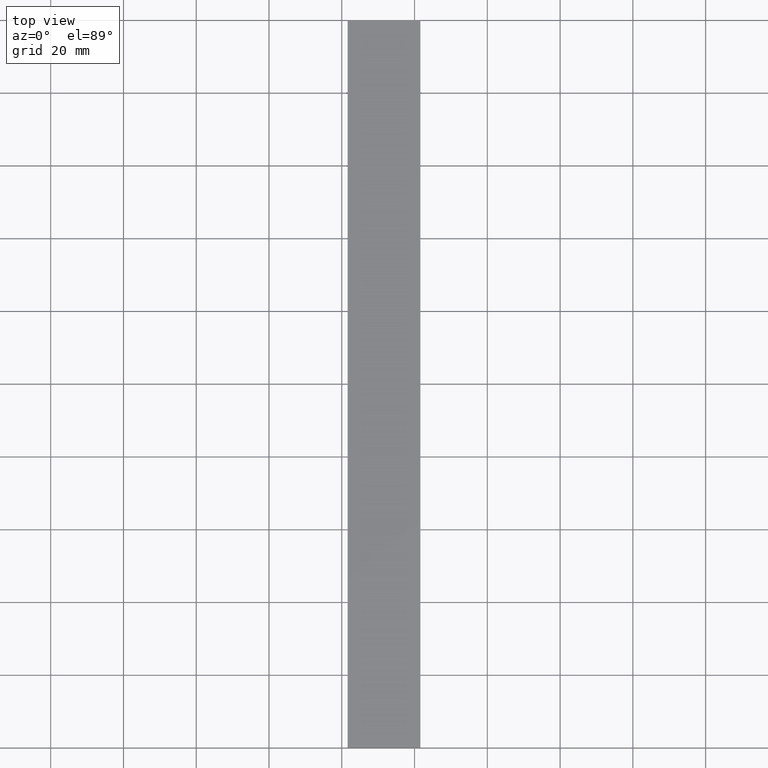
[diagram: clean part render]
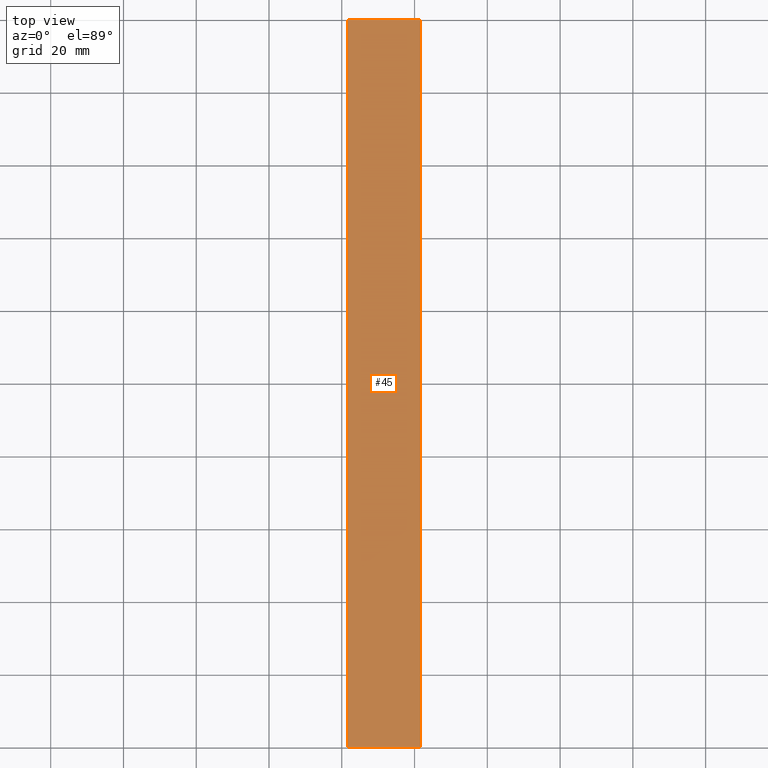
[diagram: same view with one face highlighted and labeled with its STEP entity id]
A machine part, top view. The second image highlights one B-rep face of the part: STEP entity #45.
In plain terms, the highlighted planar face has unit normal (0, -0, 1).
Its self-contained STEP definition (entity closure, byte-faithful):
#45=ADVANCED_FACE('',(#97),#96,.T.);
#96=PLANE('',#134);
#97=FACE_OUTER_BOUND('',#135,.T.);
#131=CARTESIAN_POINT('',(-6.03984348923E+01,-1.00000000000E+01,-1.55317700058E+01));
#132=DIRECTION('',(0.00000000000E+00,-0.00000000000E+00,1.00000000000E+00));
#133=DIRECTION('',(1.00000000000E+00,0.00000000000E+00,-0.00000000000E+00));
#134=AXIS2_PLACEMENT_3D('',#131,#132,#133);
#135=EDGE_LOOP('',(#156,#157,#158,#159));
#156=ORIENTED_EDGE('',*,*,#166,.F.);
#157=ORIENTED_EDGE('',*,*,#171,.F.);
#158=ORIENTED_EDGE('',*,*,#162,.T.);
#159=ORIENTED_EDGE('',*,*,#168,.T.);
#162=EDGE_CURVE('',#187,#180,#188,.T.);
#166=EDGE_CURVE('',#208,#215,#216,.T.);
#168=EDGE_CURVE('',#180,#215,#228,.T.);
#171=EDGE_CURVE('',#187,#208,#246,.T.);
#180=VERTEX_POINT('',#257);
#187=VERTEX_POINT('',#261);
#188=LINE('',#262,#263);
#208=VERTEX_POINT('',#273);
#215=VERTEX_POINT('',#277);
#216=LINE('',#278,#279);
#228=LINE('',#284,#285);
#246=LINE('',#293,#294);
#257=CARTESIAN_POINT('',(-5.83984348923E+01,2.00000000000E+02,-1.55317700058E+01));
#261=CARTESIAN_POINT('',(-3.83984348923E+01,2.00000000000E+02,-1.55317700058E+01));
#262=CARTESIAN_POINT('',(-3.83984348923E+01,2.00000000000E+02,-1.55317700058E+01));
#263=VECTOR('',#264,2.00000000000E+01);
#264=DIRECTION('',(-1.00000000000E+00,0.00000000000E+00,0.00000000000E+00));
#273=CARTESIAN_POINT('',(-3.83984348923E+01,0.00000000000E+00,-1.55317700058E+01));
#277=CARTESIAN_POINT('',(-5.83984348923E+01,0.00000000000E+00,-1.55317700058E+01));
#278=CARTESIAN_POINT('',(-3.83984348923E+01,0.00000000000E+00,-1.55317700058E+01));
#279=VECTOR('',#280,2.00000000000E+01);
#280=DIRECTION('',(-1.00000000000E+00,0.00000000000E+00,0.00000000000E+00));
#284=CARTESIAN_POINT('',(-5.83984348923E+01,2.00000000000E+02,-1.55317700058E+01));
#285=VECTOR('',#286,2.00000000000E+02);
#286=DIRECTION('',(0.00000000000E+00,-1.00000000000E+00,0.00000000000E+00));
#293=CARTESIAN_POINT('',(-3.83984348923E+01,2.00000000000E+02,-1.55317700058E+01));
#294=VECTOR('',#295,2.00000000000E+02);
#295=DIRECTION('',(0.00000000000E+00,-1.00000000000E+00,0.00000000000E+00));